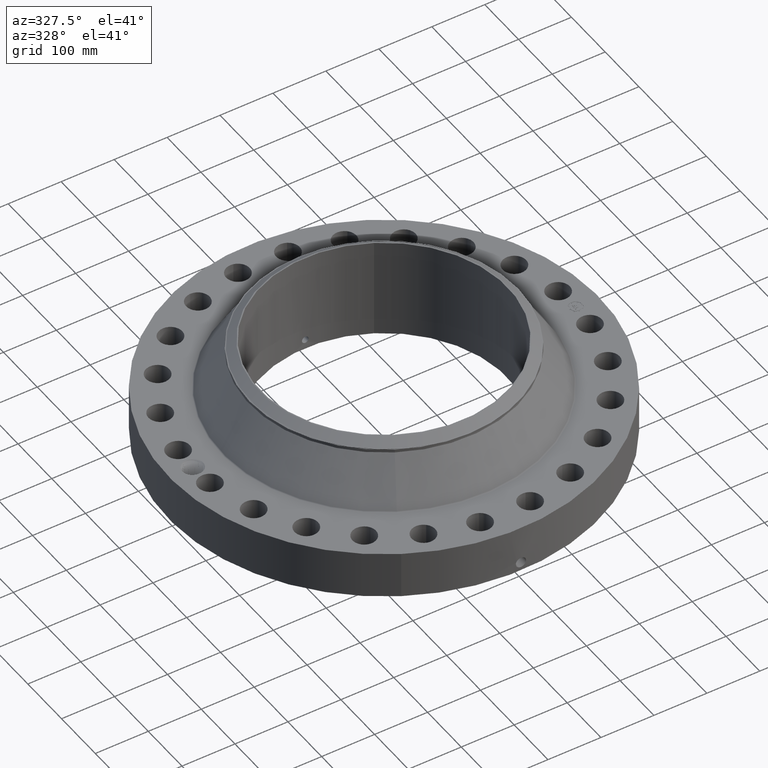
[diagram: clean part render]
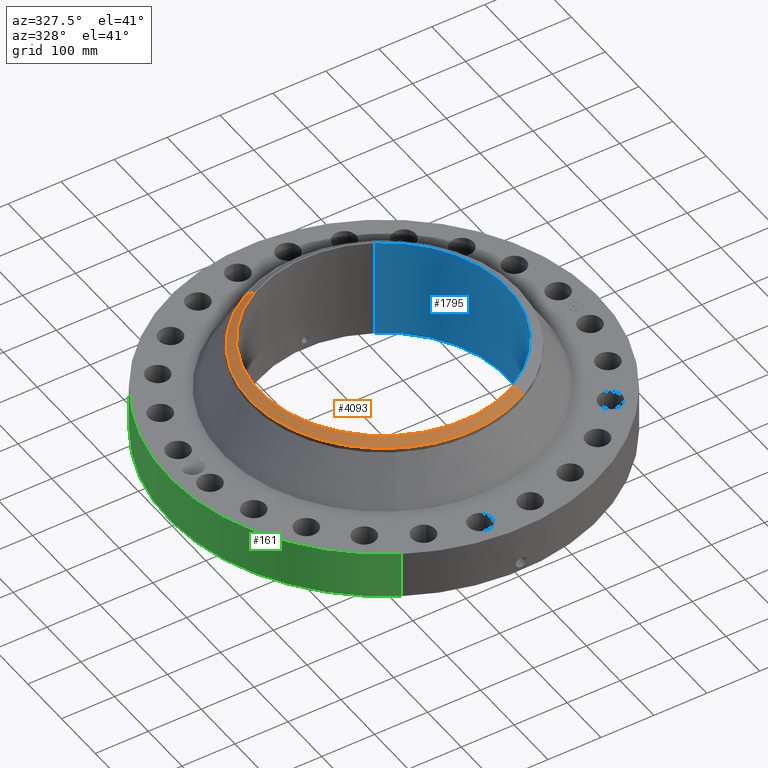
[diagram: same view with three faces highlighted in distinct colors, each labeled with its STEP entity id]
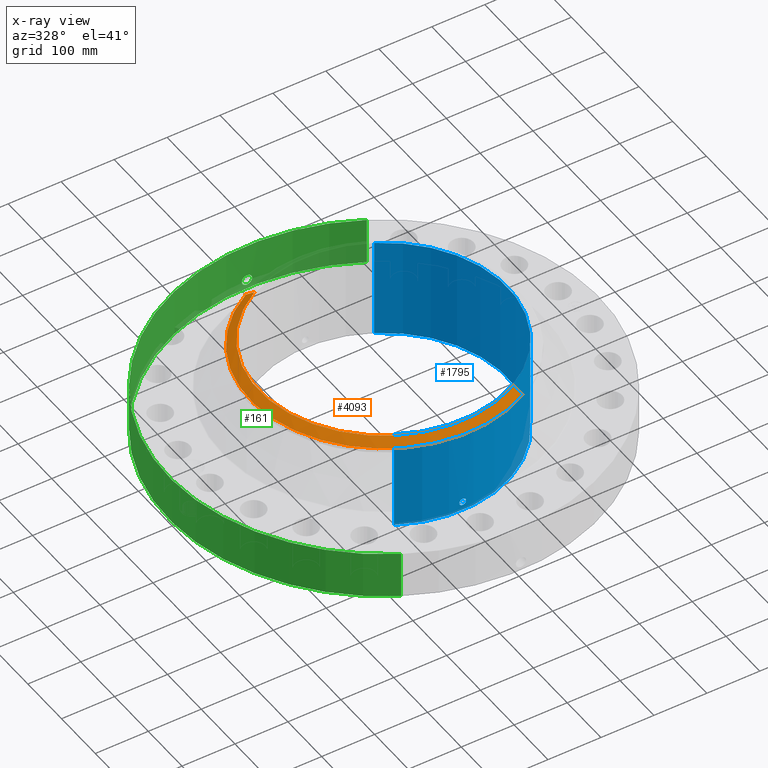
[diagram: x-ray of the same camera — body ghosted, the three highlighted faces saturated]
A machine part, auxiliary view with three faces highlighted in distinct colors.
The next image is the same camera in x-ray (body ghosted, the three faces saturated) — at least one of them is partly hidden behind the body in this view.
Their STEP definitions:

[orange] entity #4093 — the highlighted conical surface has half-angle 52.5 deg.
#3255=AXIS2_PLACEMENT_3D('Circle Axis2P3D',#3253,#3254,$) ;
#4066=AXIS2_PLACEMENT_3D('Cone Axis2P3D',#4063,#4064,#4065) ;
#4077=AXIS2_PLACEMENT_3D('Circle Axis2P3D',#4075,#4076,$) ;
#3248=CARTESIAN_POINT('Vertex',(4.44271189112,-8.13232956781,7.75000000003)) ;
#3250=CARTESIAN_POINT('Vertex',(-4.44271189112,8.13232956781,7.75000000003)) ;
#3253=CARTESIAN_POINT('Axis2P3D Location',(0.,0.,7.75000000003)) ;
#4063=CARTESIAN_POINT('Axis2P3D Location',(0.,0.,7.75000000003)) ;
#4068=CARTESIAN_POINT('Line Origine',(-4.59765319367,8.41594771971,7.5020143726)) ;
#4072=CARTESIAN_POINT('Vertex',(-4.75259449622,8.69956587161,7.25402874516)) ;
#4075=CARTESIAN_POINT('Axis2P3D Location',(0.,0.,7.25402874516)) ;
#4079=CARTESIAN_POINT('Vertex',(4.75259449622,-8.69956587161,7.25402874516)) ;
#4082=CARTESIAN_POINT('Line Origine',(4.59765319367,-8.41594771971,7.5020143726)) ;
#3254=DIRECTION('Axis2P3D Direction',(0.,0.,-0.0393700787402)) ;
#4064=DIRECTION('Axis2P3D Direction',(-0.,-0.,-0.0393700787402)) ;
#4065=DIRECTION('Axis2P3D XDirection',(-0.0188750212049,0.0345504945626,0.)) ;
#4069=DIRECTION('Vector Direction',(-0.014974561121,0.02741075027,-0.023966985394)) ;
#4076=DIRECTION('Axis2P3D Direction',(0.,0.,-0.0393700787402)) ;
#4083=DIRECTION('Vector Direction',(0.014974561121,-0.02741075027,-0.023966985394)) ;
#4070=VECTOR('Line Direction',#4069,0.0393700787402) ;
#4084=VECTOR('Line Direction',#4083,0.0393700787402) ;
#4088=ORIENTED_EDGE('',*,*,#3257,.F.) ;
#4089=ORIENTED_EDGE('',*,*,#4074,.T.) ;
#4090=ORIENTED_EDGE('',*,*,#4081,.T.) ;
#4091=ORIENTED_EDGE('',*,*,#4086,.F.) ;
#4093=ADVANCED_FACE('PartBody',(#4092),#4067,.T.) ;
#3256=CIRCLE('generated circle',#3255,9.26674015752) ;
#4078=CIRCLE('generated circle',#4077,9.91310248106) ;
#4067=CONICAL_SURFACE('Cone',#4066,9.26674015752,0.916297857297) ;
#3257=EDGE_CURVE('',#3251,#3249,#3256,.F.) ;
#4074=EDGE_CURVE('',#3251,#4073,#4071,.T.) ;
#4081=EDGE_CURVE('',#4073,#4080,#4078,.F.) ;
#4086=EDGE_CURVE('',#3249,#4080,#4085,.T.) ;
#4087=EDGE_LOOP('',(#4088,#4089,#4090,#4091)) ;
#4092=FACE_OUTER_BOUND('',#4087,.T.) ;
#4071=LINE('Line',#4068,#4070) ;
#4085=LINE('Line',#4082,#4084) ;
#3249=VERTEX_POINT('',#3248) ;
#3251=VERTEX_POINT('',#3250) ;
#4073=VERTEX_POINT('',#4072) ;
#4080=VERTEX_POINT('',#4079) ;

[blue] entity #1795 — the highlighted cylindrical surface (partial cylindrical patch) has radius 233.375 mm, axis along (0, 0, -1).
#254=AXIS2_PLACEMENT_3D('Circle Axis2P3D',#252,#253,$) ;
#1726=AXIS2_PLACEMENT_3D('Cylinder Axis2P3D',#1723,#1724,#1725) ;
#1730=AXIS2_PLACEMENT_3D('Circle Axis2P3D',#1728,#1729,$) ;
#252=CARTESIAN_POINT('Axis2P3D Location',(0.,0.,0.250000000001)) ;
#256=CARTESIAN_POINT('Vertex',(4.40496184871,8.06322857868,0.250000000001)) ;
#258=CARTESIAN_POINT('Vertex',(-4.40496184871,-8.06322857868,0.250000000001)) ;
#1723=CARTESIAN_POINT('Axis2P3D Location',(0.,0.,4.00000000002)) ;
#1728=CARTESIAN_POINT('Axis2P3D Location',(0.,0.,7.75000000003)) ;
#1732=CARTESIAN_POINT('Vertex',(4.40496184871,8.06322857868,7.75000000003)) ;
#1734=CARTESIAN_POINT('Vertex',(-4.40496184871,-8.06322857868,7.75000000003)) ;
#1737=CARTESIAN_POINT('Line Origine',(4.40496184871,8.06322857868,4.00000000002)) ;
#1742=CARTESIAN_POINT('Line Origine',(-4.40496184871,-8.06322857868,4.00000000002)) ;
#1754=CARTESIAN_POINT('Control Point',(0.219395640473,-9.18538020735,0.820143615352)) ;
#1755=CARTESIAN_POINT('Control Point',(0.194442987078,-9.18597620918,0.774468089687)) ;
#1756=CARTESIAN_POINT('Control Point',(0.15760509617,-9.18677131345,0.735288182818)) ;
#1757=CARTESIAN_POINT('Control Point',(0.111107557799,-9.18754458944,0.706756721547)) ;
#1758=CARTESIAN_POINT('Control Point',(0.0336725378613,-9.18815982914,0.684117297769)) ;
#1759=CARTESIAN_POINT('Control Point',(-0.0446721778389,-9.18794721576,0.691943778496)) ;
#1760=CARTESIAN_POINT('Control Point',(-0.0703022473929,-9.1877821633,0.697956593169)) ;
#1761=CARTESIAN_POINT('Control Point',(-0.143958767485,-9.18705279408,0.725789345232)) ;
#1762=CARTESIAN_POINT('Control Point',(-0.203246602951,-9.18586227924,0.780505296139)) ;
#1763=CARTESIAN_POINT('Control Point',(-0.232211400191,-9.18508146425,0.826745407938)) ;
#1764=CARTESIAN_POINT('Control Point',(-0.255840806348,-9.1844396243,0.904891772715)) ;
#1765=CARTESIAN_POINT('Control Point',(-0.248282255271,-9.18464476708,0.984255435466)) ;
#1766=CARTESIAN_POINT('Control Point',(-0.2420484912,-9.18481640947,1.01081708363)) ;
#1767=CARTESIAN_POINT('Control Point',(-0.232315151848,-9.18507162084,1.03620737771)) ;
#1768=CARTESIAN_POINT('Control Point',(-0.219395640473,-9.18538020735,1.05985638466)) ;
#1769=CARTESIAN_POINT('Vertex',(0.219395640473,-9.18538020735,0.820143615352)) ;
#1771=CARTESIAN_POINT('Vertex',(-0.219395640473,-9.18538020735,1.05985638466)) ;
#1775=CARTESIAN_POINT('Control Point',(-0.219395640473,-9.18538020735,1.05985638466)) ;
#1776=CARTESIAN_POINT('Control Point',(-0.194442987076,-9.18597620918,1.10553191032)) ;
#1777=CARTESIAN_POINT('Control Point',(-0.157605096163,-9.18677131345,1.1447118172)) ;
#1778=CARTESIAN_POINT('Control Point',(-0.111107557814,-9.18754458944,1.17324327846)) ;
#1779=CARTESIAN_POINT('Control Point',(-0.0336725378704,-9.18815982914,1.19588270224)) ;
#1780=CARTESIAN_POINT('Control Point',(0.0446721778365,-9.18794721576,1.18805622151)) ;
#1781=CARTESIAN_POINT('Control Point',(0.0703022473834,-9.1877821633,1.18204340684)) ;
#1782=CARTESIAN_POINT('Control Point',(0.143958767496,-9.18705279408,1.15421065477)) ;
#1783=CARTESIAN_POINT('Control Point',(0.203246602977,-9.18586227924,1.09949470385)) ;
#1784=CARTESIAN_POINT('Control Point',(0.232211400176,-9.18508146425,1.05325459211)) ;
#1785=CARTESIAN_POINT('Control Point',(0.25584080635,-9.1844396243,0.975108227318)) ;
#1786=CARTESIAN_POINT('Control Point',(0.248282255272,-9.18464476708,0.895744564546)) ;
#1787=CARTESIAN_POINT('Control Point',(0.2420484912,-9.18481640947,0.86918291638)) ;
#1788=CARTESIAN_POINT('Control Point',(0.232315151849,-9.18507162084,0.843792622295)) ;
#1789=CARTESIAN_POINT('Control Point',(0.219395640473,-9.18538020735,0.820143615352)) ;
#253=DIRECTION('Axis2P3D Direction',(0.,0.,-0.0393700787402)) ;
#1724=DIRECTION('Axis2P3D Direction',(0.,0.,-0.0393700787402)) ;
#1725=DIRECTION('Axis2P3D XDirection',(-0.0188750212049,-0.0345504945626,0.)) ;
#1729=DIRECTION('Axis2P3D Direction',(0.,0.,-0.0393700787402)) ;
#1738=DIRECTION('Vector Direction',(0.,0.,-0.0393700787402)) ;
#1743=DIRECTION('Vector Direction',(0.,0.,-0.0393700787402)) ;
#1739=VECTOR('Line Direction',#1738,0.0393700787402) ;
#1744=VECTOR('Line Direction',#1743,0.0393700787402) ;
#1748=ORIENTED_EDGE('',*,*,#1736,.F.) ;
#1749=ORIENTED_EDGE('',*,*,#1741,.T.) ;
#1750=ORIENTED_EDGE('',*,*,#260,.T.) ;
#1751=ORIENTED_EDGE('',*,*,#1746,.F.) ;
#1792=ORIENTED_EDGE('',*,*,#1773,.F.) ;
#1793=ORIENTED_EDGE('',*,*,#1790,.F.) ;
#1794=FACE_BOUND('',#1791,.T.) ;
#1795=ADVANCED_FACE('PartBody',(#1752,#1794),#1727,.F.) ;
#1753=B_SPLINE_CURVE_WITH_KNOTS('',5,(#1754,#1755,#1756,#1757,#1758,#1759,#1760,#1761,#1762,#1763,#1764,#1765,#1766,#1767,#1768),.UNSPECIFIED.,.F.,.U.,(6,3,3,3,6),(0.,9.34851783309,14.022894203,23.3729328251,28.2132309916),.UNSPECIFIED.) ;
#1774=B_SPLINE_CURVE_WITH_KNOTS('',5,(#1775,#1776,#1777,#1778,#1779,#1780,#1781,#1782,#1783,#1784,#1785,#1786,#1787,#1788,#1789),.UNSPECIFIED.,.F.,.U.,(6,3,3,3,6),(0.,9.34851783393,14.0228942041,23.3729328297,28.2132309965),.UNSPECIFIED.) ;
#255=CIRCLE('generated circle',#254,9.18800000004) ;
#1731=CIRCLE('generated circle',#1730,9.18800000004) ;
#1727=CYLINDRICAL_SURFACE('generated cylinder',#1726,9.18800000004) ;
#260=EDGE_CURVE('',#257,#259,#255,.T.) ;
#1736=EDGE_CURVE('',#1733,#1735,#1731,.T.) ;
#1741=EDGE_CURVE('',#1733,#257,#1740,.T.) ;
#1746=EDGE_CURVE('',#1735,#259,#1745,.T.) ;
#1773=EDGE_CURVE('',#1770,#1772,#1753,.T.) ;
#1790=EDGE_CURVE('',#1772,#1770,#1774,.T.) ;
#1747=EDGE_LOOP('',(#1748,#1749,#1750,#1751)) ;
#1791=EDGE_LOOP('',(#1792,#1793)) ;
#1752=FACE_OUTER_BOUND('',#1747,.T.) ;
#1740=LINE('Line',#1737,#1739) ;
#1745=LINE('Line',#1742,#1744) ;
#257=VERTEX_POINT('',#256) ;
#259=VERTEX_POINT('',#258) ;
#1733=VERTEX_POINT('',#1732) ;
#1735=VERTEX_POINT('',#1734) ;
#1770=VERTEX_POINT('',#1769) ;
#1772=VERTEX_POINT('',#1771) ;

[green] entity #161 — the highlighted cylindrical surface (partial cylindrical patch) has radius 406.4 mm, axis along (0, 0, -1).
#38=AXIS2_PLACEMENT_3D('Cylinder Axis2P3D',#35,#36,#37) ;
#42=AXIS2_PLACEMENT_3D('Circle Axis2P3D',#40,#41,$) ;
#58=AXIS2_PLACEMENT_3D('Circle Axis2P3D',#56,#57,$) ;
#35=CARTESIAN_POINT('Axis2P3D Location',(0.,0.,4.00000000002)) ;
#40=CARTESIAN_POINT('Axis2P3D Location',(0.,0.,0.250000000001)) ;
#44=CARTESIAN_POINT('Vertex',(-7.6708086177,-14.0413209903,0.250000000001)) ;
#46=CARTESIAN_POINT('Vertex',(7.6708086177,14.0413209903,0.250000000001)) ;
#49=CARTESIAN_POINT('Line Origine',(-7.6708086177,-14.0413209903,2.00000000001)) ;
#53=CARTESIAN_POINT('Vertex',(-7.6708086177,-14.0413209903,3.75000000002)) ;
#56=CARTESIAN_POINT('Axis2P3D Location',(0.,0.,3.75000000002)) ;
#60=CARTESIAN_POINT('Vertex',(7.6708086177,14.0413209903,3.75000000002)) ;
#63=CARTESIAN_POINT('Line Origine',(7.6708086177,14.0413209903,2.00000000001)) ;
#75=CARTESIAN_POINT('Control Point',(-0.000716008747416,15.999999984,1.29411846139)) ;
#76=CARTESIAN_POINT('Control Point',(-0.0189155164327,15.9999991696,1.29408170801)) ;
#77=CARTESIAN_POINT('Control Point',(-0.0371118540507,15.9999670595,1.29263810614)) ;
#78=CARTESIAN_POINT('Control Point',(-0.0550892795957,15.9999051614,1.28980494183)) ;
#79=CARTESIAN_POINT('Vertex',(-0.000715672610262,15.9999999841,1.29411851063)) ;
#81=CARTESIAN_POINT('Vertex',(-0.0550805829282,15.9999054422,1.2898063303)) ;
#85=CARTESIAN_POINT('Control Point',(-0.0550804883369,15.9999051917,1.28980578611)) ;
#86=CARTESIAN_POINT('Control Point',(-0.0955971581906,15.999765711,1.28541320242)) ;
#87=CARTESIAN_POINT('Control Point',(-0.135483165867,15.9994685853,1.27365431664)) ;
#88=CARTESIAN_POINT('Control Point',(-0.172232896312,15.9990729679,1.2553007981)) ;
#89=CARTESIAN_POINT('Vertex',(-0.172232896312,15.9990729679,1.2553007981)) ;
#93=CARTESIAN_POINT('Control Point',(-0.0310650942398,15.9999698425,0.531193028101)) ;
#94=CARTESIAN_POINT('Control Point',(-0.0962766342216,15.9998432296,0.539443757732)) ;
#95=CARTESIAN_POINT('Control Point',(-0.159435338499,15.9993883705,0.561295185731)) ;
#96=CARTESIAN_POINT('Control Point',(-0.216604794126,15.9986524412,0.596092487243)) ;
#97=CARTESIAN_POINT('Control Point',(-0.292161756329,15.9973970196,0.667062059416)) ;
#98=CARTESIAN_POINT('Control Point',(-0.340748207533,15.9963833295,0.755879254747)) ;
#99=CARTESIAN_POINT('Control Point',(-0.35456591858,15.996075728,0.790101864498)) ;
#100=CARTESIAN_POINT('Control Point',(-0.375131957453,15.9956053359,0.865081019566)) ;
#101=CARTESIAN_POINT('Control Point',(-0.376942950259,15.9955577989,0.942370316909)) ;
#102=CARTESIAN_POINT('Control Point',(-0.372580094366,15.9956631167,0.982943488632)) ;
#103=CARTESIAN_POINT('Control Point',(-0.350060932291,15.9961923162,1.075658493)) ;
#104=CARTESIAN_POINT('Control Point',(-0.300399964427,15.9972222185,1.15719244934)) ;
#105=CARTESIAN_POINT('Control Point',(-0.263624826084,15.9979099404,1.19825232929)) ;
#106=CARTESIAN_POINT('Control Point',(-0.220118858937,15.9985574669,1.23138562825)) ;
#107=CARTESIAN_POINT('Control Point',(-0.172232896312,15.9990729679,1.2553007981)) ;
#108=CARTESIAN_POINT('Vertex',(-0.0310650942398,15.9999698425,0.531193028101)) ;
#112=CARTESIAN_POINT('Control Point',(-0.0310650942398,15.9999698425,0.531193028101)) ;
#113=CARTESIAN_POINT('Control Point',(-0.0207052656616,15.9999899569,0.530875112117)) ;
#114=CARTESIAN_POINT('Control Point',(-0.0103376885925,16.0000000018,0.530935836227)) ;
#115=CARTESIAN_POINT('Control Point',(2.72878357802E-006,16.0000000001,0.531374667806)) ;
#116=CARTESIAN_POINT('Vertex',(2.72878354254E-006,16.0000000001,0.531374667806)) ;
#120=CARTESIAN_POINT('Control Point',(0.19258388645,15.9988409408,0.587488708577)) ;
#121=CARTESIAN_POINT('Control Point',(0.148989678463,15.9993657002,0.562084850862)) ;
#122=CARTESIAN_POINT('Control Point',(0.101113490457,15.9997843131,0.543795292521)) ;
#123=CARTESIAN_POINT('Control Point',(0.0508045021744,15.9999999914,0.533530615602)) ;
#124=CARTESIAN_POINT('Control Point',(2.72878354959E-006,16.0000000001,0.531374667806)) ;
#125=CARTESIAN_POINT('Vertex',(0.19258388645,15.9988409408,0.587488708577)) ;
#129=CARTESIAN_POINT('Control Point',(0.19258388645,15.9988409408,0.587488708577)) ;
#130=CARTESIAN_POINT('Control Point',(0.249383480594,15.9981572233,0.620587800998)) ;
#131=CARTESIAN_POINT('Control Point',(0.29938908772,15.9973031864,0.665008577465)) ;
#132=CARTESIAN_POINT('Control Point',(0.339452302888,15.996436642,0.719172018809)) ;
#133=CARTESIAN_POINT('Control Point',(0.383556794828,15.9954112314,0.817406896275)) ;
#134=CARTESIAN_POINT('Control Point',(0.392034099285,15.9951951611,0.92268857889)) ;
#135=CARTESIAN_POINT('Control Point',(0.389883010596,15.9952493326,0.962869917644)) ;
#136=CARTESIAN_POINT('Control Point',(0.375666625791,15.9956011081,1.03779256486)) ;
#137=CARTESIAN_POINT('Control Point',(0.343490024804,15.9963246871,1.10623473435)) ;
#138=CARTESIAN_POINT('Control Point',(0.324394516269,15.9967324339,1.13665713733)) ;
#139=CARTESIAN_POINT('Control Point',(0.262721127733,15.9979362186,1.21288482886)) ;
#140=CARTESIAN_POINT('Control Point',(0.179727495454,15.9991319698,1.26573352403)) ;
#141=CARTESIAN_POINT('Control Point',(0.121118334841,15.9997179497,1.28770159128)) ;
#142=CARTESIAN_POINT('Control Point',(0.0600802985989,16.0000000972,1.29709991498)) ;
#143=CARTESIAN_POINT('Control Point',(-2.58579355615E-005,16.,1.2941529843)) ;
#144=CARTESIAN_POINT('Vertex',(-2.58579355473E-005,16.,1.2941529843)) ;
#148=CARTESIAN_POINT('Control Point',(-0.000715672600631,15.9999999841,1.29411851061)) ;
#149=CARTESIAN_POINT('Control Point',(-0.000370789841787,15.9999999995,1.29413607272)) ;
#150=CARTESIAN_POINT('Control Point',(-2.58579404943E-005,16.,1.2941529843)) ;
#36=DIRECTION('Axis2P3D Direction',(0.,0.,-0.0393700787402)) ;
#37=DIRECTION('Axis2P3D XDirection',(0.0188750212049,0.0345504945626,0.)) ;
#41=DIRECTION('Axis2P3D Direction',(0.,0.,-0.0393700787402)) ;
#50=DIRECTION('Vector Direction',(0.,0.,-0.0393700787402)) ;
#57=DIRECTION('Axis2P3D Direction',(0.,0.,-0.0393700787402)) ;
#64=DIRECTION('Vector Direction',(0.,0.,-0.0393700787402)) ;
#51=VECTOR('Line Direction',#50,0.0393700787402) ;
#65=VECTOR('Line Direction',#64,0.0393700787402) ;
#69=ORIENTED_EDGE('',*,*,#48,.F.) ;
#70=ORIENTED_EDGE('',*,*,#55,.T.) ;
#71=ORIENTED_EDGE('',*,*,#62,.T.) ;
#72=ORIENTED_EDGE('',*,*,#67,.F.) ;
#153=ORIENTED_EDGE('',*,*,#83,.T.) ;
#154=ORIENTED_EDGE('',*,*,#91,.T.) ;
#155=ORIENTED_EDGE('',*,*,#110,.F.) ;
#156=ORIENTED_EDGE('',*,*,#118,.T.) ;
#157=ORIENTED_EDGE('',*,*,#127,.F.) ;
#158=ORIENTED_EDGE('',*,*,#146,.T.) ;
#159=ORIENTED_EDGE('',*,*,#151,.F.) ;
#160=FACE_BOUND('',#152,.T.) ;
#161=ADVANCED_FACE('PartBody',(#73,#160),#39,.T.) ;
#74=B_SPLINE_CURVE_WITH_KNOTS('',3,(#75,#76,#77,#78),.UNSPECIFIED.,.F.,.U.,(4,4),(34.6166522775,36.6357147679),.UNSPECIFIED.) ;
#84=B_SPLINE_CURVE_WITH_KNOTS('',3,(#85,#86,#87,#88),.UNSPECIFIED.,.F.,.U.,(4,4),(0.,4.57929650832),.UNSPECIFIED.) ;
#92=B_SPLINE_CURVE_WITH_KNOTS('',5,(#93,#94,#95,#96,#97,#98,#99,#100,#101,#102,#103,#104,#105,#106,#107),.UNSPECIFIED.,.F.,.U.,(6,3,3,3,6),(0.,11.4233450093,17.9912535708,25.3436090555,35.2885358903),.UNSPECIFIED.) ;
#111=B_SPLINE_CURVE_WITH_KNOTS('',3,(#112,#113,#114,#115),.UNSPECIFIED.,.F.,.U.,(4,4),(0.,1.08069455748),.UNSPECIFIED.) ;
#119=B_SPLINE_CURVE_WITH_KNOTS('',4,(#120,#121,#122,#123,#124),.UNSPECIFIED.,.F.,.U.,(5,5),(0.,7.07917264526),.UNSPECIFIED.) ;
#128=B_SPLINE_CURVE_WITH_KNOTS('',5,(#129,#130,#131,#132,#133,#134,#135,#136,#137,#138,#139,#140,#141,#142,#143),.UNSPECIFIED.,.F.,.U.,(6,3,3,3,6),(0.,11.5294595643,18.6151297889,25.0414153913,36.2765036678),.UNSPECIFIED.) ;
#147=B_SPLINE_CURVE_WITH_KNOTS('',2,(#148,#149,#150),.UNSPECIFIED.,.F.,.U.,(3,3),(1.02033651815,1.04612649208),.UNSPECIFIED.) ;
#43=CIRCLE('generated circle',#42,16.0000000001) ;
#59=CIRCLE('generated circle',#58,16.0000000001) ;
#39=CYLINDRICAL_SURFACE('generated cylinder',#38,16.0000000001) ;
#48=EDGE_CURVE('',#45,#47,#43,.T.) ;
#55=EDGE_CURVE('',#45,#54,#52,.F.) ;
#62=EDGE_CURVE('',#54,#61,#59,.T.) ;
#67=EDGE_CURVE('',#47,#61,#66,.F.) ;
#83=EDGE_CURVE('',#80,#82,#74,.T.) ;
#91=EDGE_CURVE('',#82,#90,#84,.T.) ;
#110=EDGE_CURVE('',#109,#90,#92,.T.) ;
#118=EDGE_CURVE('',#109,#117,#111,.T.) ;
#127=EDGE_CURVE('',#126,#117,#119,.T.) ;
#146=EDGE_CURVE('',#126,#145,#128,.T.) ;
#151=EDGE_CURVE('',#80,#145,#147,.T.) ;
#68=EDGE_LOOP('',(#69,#70,#71,#72)) ;
#152=EDGE_LOOP('',(#153,#154,#155,#156,#157,#158,#159)) ;
#73=FACE_OUTER_BOUND('',#68,.T.) ;
#52=LINE('Line',#49,#51) ;
#66=LINE('Line',#63,#65) ;
#45=VERTEX_POINT('',#44) ;
#47=VERTEX_POINT('',#46) ;
#54=VERTEX_POINT('',#53) ;
#61=VERTEX_POINT('',#60) ;
#80=VERTEX_POINT('',#79) ;
#82=VERTEX_POINT('',#81) ;
#90=VERTEX_POINT('',#89) ;
#109=VERTEX_POINT('',#108) ;
#117=VERTEX_POINT('',#116) ;
#126=VERTEX_POINT('',#125) ;
#145=VERTEX_POINT('',#144) ;